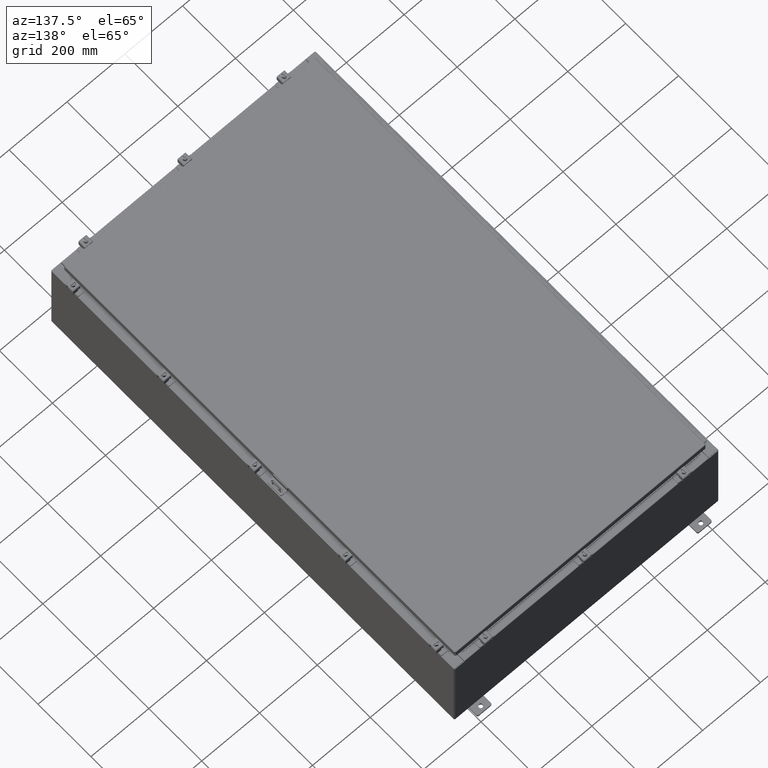
[diagram: clean part render]
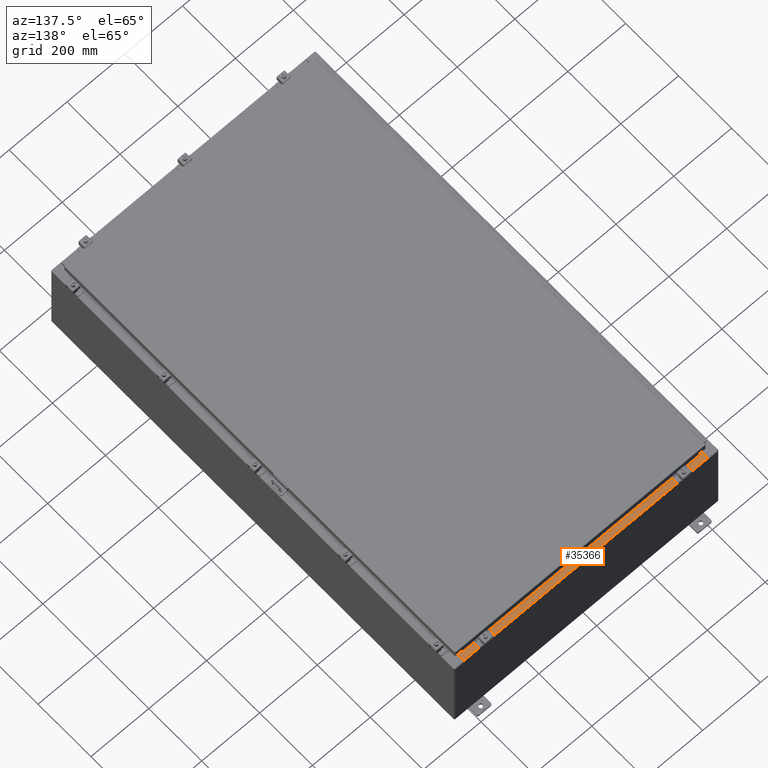
[diagram: same view with one face highlighted and labeled with its STEP entity id]
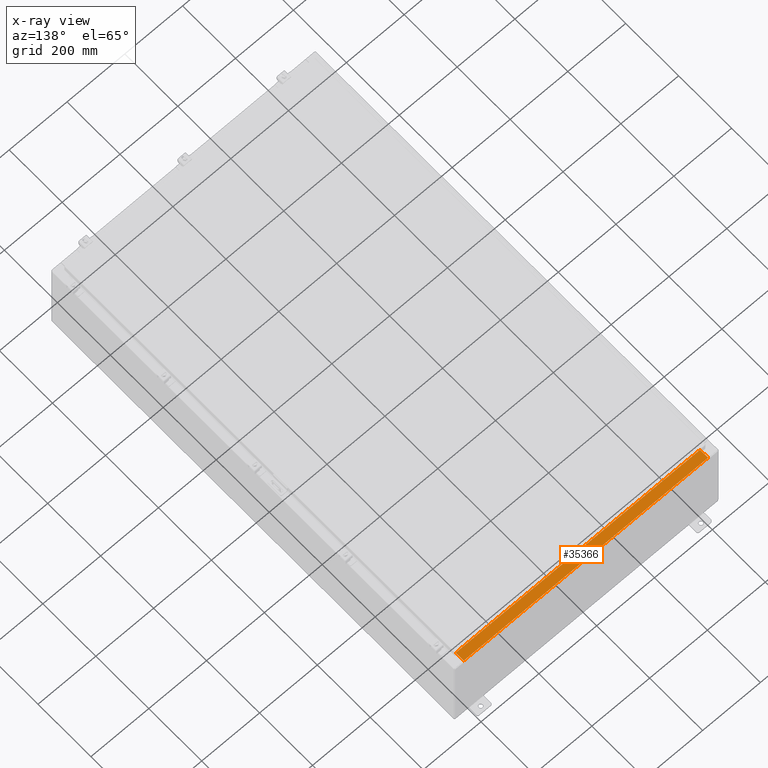
[diagram: x-ray of the same camera — body ghosted, the highlighted face saturated]
A machine part, auxiliary view. The second image highlights one B-rep face of the part: STEP entity #35366.
The next image is the same camera in x-ray: the body ghosted, the highlighted face saturated — about 0% of this face is hidden behind the body in this view.
In plain terms, the highlighted planar face has unit normal (0, 0, 1).
Its self-contained STEP definition (entity closure, byte-faithful):
#2547 = CARTESIAN_POINT ( 'NONE',  ( 16.63720000000000400, -1.287299999999999200, 6.000000000000002700 ) ) ;
#2827 = CARTESIAN_POINT ( 'NONE',  ( -5.156971941007230600E-018, -0.08770000000000026400, 5.999999999999998200 ) ) ;
#6798 = ORIENTED_EDGE ( 'NONE', *, *, #60384, .F. ) ;
#7557 = VERTEX_POINT ( 'NONE', #14588 ) ;
#7683 = VERTEX_POINT ( 'NONE', #40515 ) ;
#7811 = VECTOR ( 'NONE', #57205, 39.37007874015748100 ) ;
#9499 = ORIENTED_EDGE ( 'NONE', *, *, #60329, .T. ) ;
#14588 = CARTESIAN_POINT ( 'NONE',  ( -16.63719999999999600, -0.08770000000000026400, 5.999999999999998200 ) ) ;
#15337 = CARTESIAN_POINT ( 'NONE',  ( -16.63719999999999600, -1.287299999999999200, 6.000000000000002700 ) ) ;
#19533 = ORIENTED_EDGE ( 'NONE', *, *, #64424, .F. ) ;
#19764 = CARTESIAN_POINT ( 'NONE',  ( -16.63719999999999600, -0.07469999999999797600, 5.999999999999998200 ) ) ;
#22686 = DIRECTION ( 'NONE',  ( -1.000000000000000000, 3.284023746380717400E-017, -8.784060394284559800E-032 ) ) ;
#28125 = CARTESIAN_POINT ( 'NONE',  ( 16.63720000000000400, -1.300300000000001300, 6.000000000000002700 ) ) ;
#28530 = ORIENTED_EDGE ( 'NONE', *, *, #37563, .F. ) ;
#30920 = DIRECTION ( 'NONE',  ( 0.0000000000000000000, -1.000000000000000000, 2.674785894579892700E-015 ) ) ;
#31215 = VERTEX_POINT ( 'NONE', #64126 ) ;
#32909 = LINE ( 'NONE', #28125, #57824 ) ;
#32930 = FACE_OUTER_BOUND ( 'NONE', #54875, .T. ) ;
#35366 = ADVANCED_FACE ( 'NONE', ( #32930 ), #55706, .T. ) ;
#36028 = LINE ( 'NONE', #2827, #62477 ) ;
#37563 = EDGE_CURVE ( 'NONE', #51616, #7557, #55056, .T. ) ;
#40515 = CARTESIAN_POINT ( 'NONE',  ( 16.63720000000000400, -1.287299999999999200, 6.000000000000002700 ) ) ;
#43132 = DIRECTION ( 'NONE',  ( -0.0000000000000000000, -1.000000000000000000, 3.566381192773190000E-015 ) ) ;
#45740 = CARTESIAN_POINT ( 'NONE',  ( -2.276882821461954300E-018, 1.748382715945128500E-014, 5.999999999999998200 ) ) ;
#49128 = LINE ( 'NONE', #2547, #7811 ) ;
#49593 = DIRECTION ( 'NONE',  ( -0.0000000000000000000, 1.000000000000000000, -2.674785894579892700E-015 ) ) ;
#50721 = AXIS2_PLACEMENT_3D ( 'NONE', #45740, #60731, #30920 ) ;
#51616 = VERTEX_POINT ( 'NONE', #15337 ) ;
#53498 = VECTOR ( 'NONE', #49593, 39.37007874015748100 ) ;
#54875 = EDGE_LOOP ( 'NONE', ( #28530, #19533, #6798, #9499 ) ) ;
#55056 = LINE ( 'NONE', #19764, #53498 ) ;
#55706 = PLANE ( 'NONE',  #50721 ) ;
#57205 = DIRECTION ( 'NONE',  ( -1.000000000000000000, 0.0000000000000000000, 0.0000000000000000000 ) ) ;
#57824 = VECTOR ( 'NONE', #43132, 39.37007874015748100 ) ;
#60329 = EDGE_CURVE ( 'NONE', #31215, #7557, #36028, .T. ) ;
#60384 = EDGE_CURVE ( 'NONE', #31215, #7683, #32909, .T. ) ;
#60731 = DIRECTION ( 'NONE',  ( 0.0000000000000000000, 2.674785894579892700E-015, 1.000000000000000000 ) ) ;
#62477 = VECTOR ( 'NONE', #22686, 39.37007874015748100 ) ;
#64126 = CARTESIAN_POINT ( 'NONE',  ( 16.63720000000000400, -0.08770000000000026400, 5.999999999999998200 ) ) ;
#64424 = EDGE_CURVE ( 'NONE', #7683, #51616, #49128, .T. ) ;